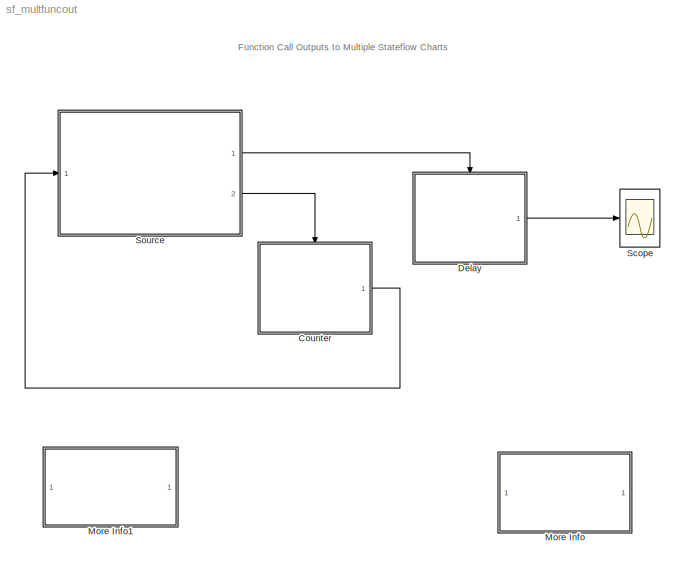
MODEL sf_multfuncout
KIND model
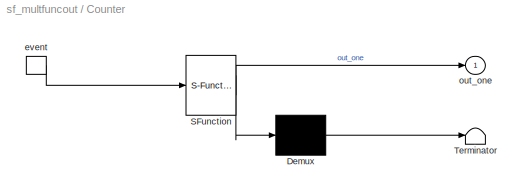
BLOCK [SubSystem] Counter
  MaskDescription = Stateflow diagram
  MaskDisplay = plot(sf('Private','sfblk','xIcon'),sf('Private','sfblk','yIcon'));text(0.5,0,sf('Private', 'sfblk', 'tIcon'),'HorizontalAl','Center','VerticalAl','Bottom');
  MaskIconFrame = off
  MaskIconOpaque = off
  MaskIconRotate = none
  MaskIconUnits = autoscale
  MaskSelfModifiable = on
  MaskType = Stateflow
  MinAlgLoopOccurrences = off
  Ports = [0, 1, 0, 1]
  PropExecContextAcrossSSBoundary = on
  RTWSystemCode = Auto
  TreatAsAtomicUnit = on
BLOCK [Demux] Counter/ Demux 
  Outputs = 1
  Ports = [1, 1]
BLOCK [S-Function] Counter/ SFunction 
  FunctionName = sf_sfun
  PortCounts = [1 2]
  Ports = [1, 2]
  Tag = Stateflow S-Function sf_multfuncout 2
BLOCK [Terminator] Counter/ Terminator 
BLOCK [TriggerPort] Counter/event
  Ports = [0, 1]
  ShowOutputPort = on
  TriggerType = function-call
  ZeroCross = off
BLOCK [Outport] Counter/out_one
  IconDisplay = Port number
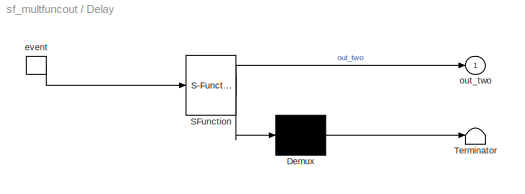
BLOCK [SubSystem] Delay
  MaskDescription = Stateflow diagram
  MaskDisplay = plot(sf('Private','sfblk','xIcon'),sf('Private','sfblk','yIcon'));text(0.5,0,sf('Private', 'sfblk', 'tIcon'),'HorizontalAl','Center','VerticalAl','Bottom');
  MaskIconFrame = off
  MaskIconOpaque = off
  MaskIconRotate = none
  MaskIconUnits = autoscale
  MaskSelfModifiable = on
  MaskType = Stateflow
  MinAlgLoopOccurrences = off
  Ports = [0, 1, 0, 1]
  PropExecContextAcrossSSBoundary = on
  RTWSystemCode = Auto
  TreatAsAtomicUnit = on
BLOCK [Demux] Delay/ Demux 
  Outputs = 1
  Ports = [1, 1]
BLOCK [S-Function] Delay/ SFunction 
  FunctionName = sf_sfun
  PortCounts = [1 2]
  Ports = [1, 2]
  Tag = Stateflow S-Function sf_multfuncout 3
BLOCK [Terminator] Delay/ Terminator 
BLOCK [TriggerPort] Delay/event
  Ports = [0, 1]
  ShowOutputPort = on
  TriggerType = function-call
  ZeroCross = off
BLOCK [Outport] Delay/out_two
  IconDisplay = Port number
BLOCK [SubSystem] More Info
  MaskDisplay = disp('Double click\\nhere for\\ninformation on\\nthis demonstration')
  MaskIconFrame = on
  MaskIconOpaque = on
  MaskIconRotate = none
  MaskIconUnits = autoscale
  MinAlgLoopOccurrences = off
  Ports = []
  PropExecContextAcrossSSBoundary = on
  RTWSystemCode = Auto
  TreatAsAtomicUnit = off
BLOCK [SubSystem] More Info1
  MaskDisplay = disp('Double click\\nhere for<path> Help')
  MaskIconFrame = on
  MaskIconOpaque = on
  MaskIconRotate = none
  MaskIconUnits = autoscale
  MinAlgLoopOccurrences = off
  OpenFcn = simcad(bdroot);
  Ports = []
  PropExecContextAcrossSSBoundary = on
  RTWSystemCode = Auto
  TreatAsAtomicUnit = off
BLOCK [Scope] Scope
  DataFormat = StructureWithTime
  NumInputPorts = 1
  Ports = [1]
  TimeRange = 30
  YMax = 7
  YMin = 0
  ZoomMode = xonly
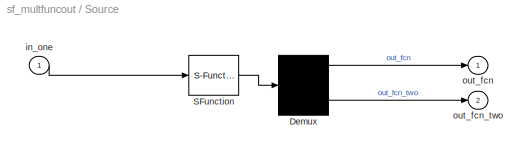
BLOCK [SubSystem] Source
  MaskDescription = Stateflow diagram
  MaskDisplay = plot(sf('Private','sfblk','xIcon'),sf('Private','sfblk','yIcon'));text(0.5,0,sf('Private', 'sfblk', 'tIcon'),'HorizontalAl','Center','VerticalAl','Bottom');
  MaskIconFrame = off
  MaskIconOpaque = off
  MaskIconRotate = none
  MaskIconUnits = autoscale
  MaskSelfModifiable = on
  MaskType = Stateflow
  MinAlgLoopOccurrences = off
  Ports = [1, 2]
  PropExecContextAcrossSSBoundary = on
  RTWSystemCode = Auto
  TreatAsAtomicUnit = off
BLOCK [Demux] Source/ Demux 
  Outputs = 2
  Ports = [1, 2]
BLOCK [S-Function] Source/ SFunction 
  FunctionName = sf_sfun
  PortCounts = [1 1]
  Ports = [1, 1]
  Tag = Stateflow S-Function sf_multfuncout 1
BLOCK [Inport] Source/in_one
  IconDisplay = Port number
  LatchInput = off
  Port = 1
BLOCK [Outport] Source/out_fcn
  IconDisplay = Port number
BLOCK [Outport] Source/out_fcn_two
  IconDisplay = Port number
  Port = 2
ANNOTATION (root): Function Call Outputs to Multiple Stateflow Charts
ANNOTATION More Info: Function Call Outputs
ANNOTATION More Info: The main purpose of this demonstration is to illustrate the use of feedback when using function-call \noutputs. The 'Source' chart sends the signal 'out_fcn_two' when transition to from State A to State B or\nvice versa. 'out_fcn_two' activates 'Counter' everytime it is sent out. 'Counter' also sends out a data\noutput, 'out_one' which is fed back to 'Source' as data 'Input from Simulink'. If the ...<+420ch>
LINE Counter/ Demux :1 -> Counter/ Terminator :1
LINE Counter/ SFunction :1 -> Counter/ Demux :1
LINE Counter/ SFunction :2 -> Counter/out_one:1
LINE Counter/event:1 -> Counter/ SFunction :1
LINE Counter:1 -> Source:1
LINE Delay/ Demux :1 -> Delay/ Terminator :1
LINE Delay/ SFunction :1 -> Delay/ Demux :1
LINE Delay/ SFunction :2 -> Delay/out_two:1
LINE Delay/event:1 -> Delay/ SFunction :1
LINE Delay:1 -> Scope:1
LINE Source/ Demux :1 -> Source/out_fcn:1
LINE Source/ Demux :2 -> Source/out_fcn_two:1
LINE Source/ SFunction :1 -> Source/ Demux :1
LINE Source/in_one:1 -> Source/ SFunction :1
LINE Source:1 -> Delay:trigger
LINE Source:2 -> Counter:trigger
CHART Source states=3 transitions=5
  STATE_LABEL 'A'
  STATE_LABEL 'B'
  STATE_LABEL 'C'
CHART Counter states=1 transitions=1
  STATE_LABEL 'A\\nen:out_one=1;\\ndu:out_one++;'
CHART Delay states=1 transitions=1
  STATE_LABEL 'A\\nen:out_two=1;\\ndu:out_two++;'
note: 1 file-system path scrubbed to <path> (not preserved elsewhere — flat text is the only slx artifact)
